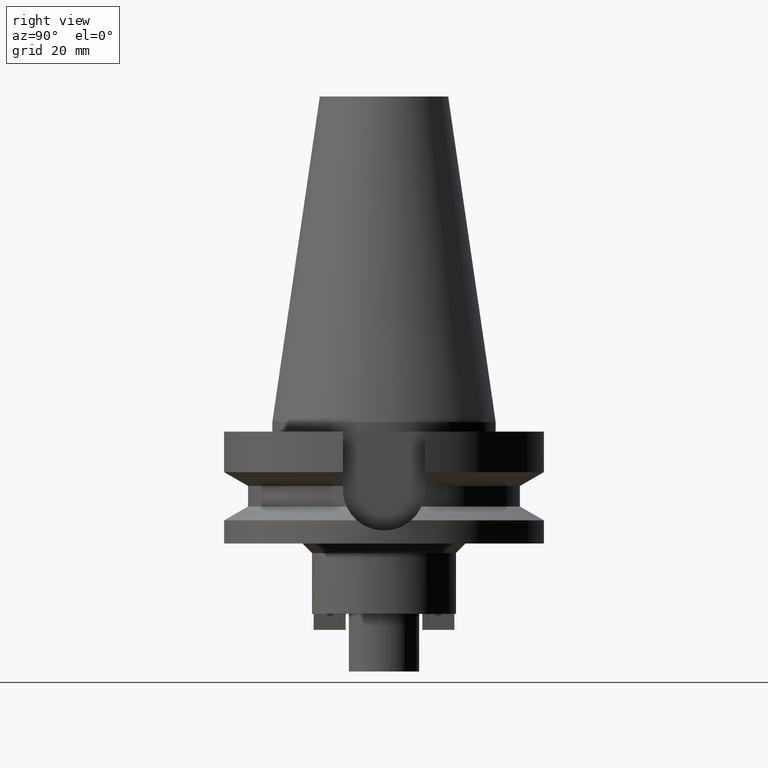
[diagram: clean part render]
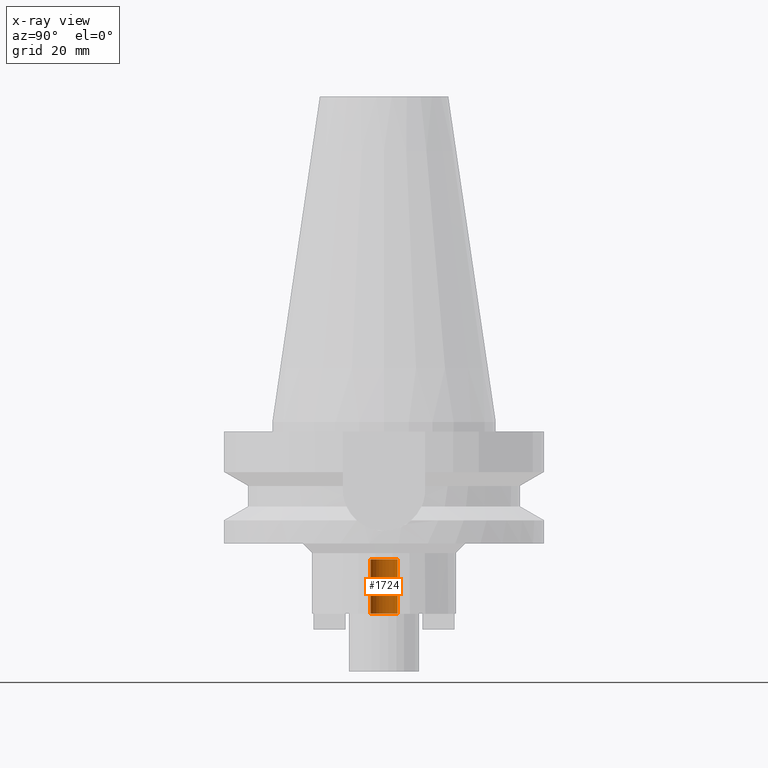
[diagram: x-ray — body ghosted, one internal face saturated and labeled with its STEP entity id]
A machine part, right view, then the same camera in x-ray: the body is ghosted and one INTERNAL B-rep face — a face not visible from any outside direction — is saturated and labeled: STEP entity #1724.
In plain terms, the highlighted cylindrical surface (edge-blend (fillet) strip) has radius 4.25 mm, axis along (0, 0, -1).
Its self-contained STEP definition (entity closure, byte-faithful):
#162=CARTESIAN_POINT('',(0.E0,2.581432987923E-14,-4.3E1));
#163=DIRECTION('',(0.E0,0.E0,1.E0));
#164=DIRECTION('',(0.E0,1.E0,0.E0));
#165=AXIS2_PLACEMENT_3D('',#162,#163,#164);
#186=DIRECTION('',(0.E0,0.E0,1.E0));
#187=VECTOR('',#186,1.7E1);
#188=CARTESIAN_POINT('',(0.E0,4.25E0,-6.E1));
#189=LINE('',#188,#187);
#201=DIRECTION('',(0.E0,0.E0,1.E0));
#202=VECTOR('',#201,1.7E1);
#203=CARTESIAN_POINT('',(0.E0,-4.25E0,-6.E1));
#204=LINE('',#203,#202);
#215=CARTESIAN_POINT('',(0.E0,2.581432987923E-14,-6.E1));
#216=DIRECTION('',(0.E0,0.E0,-1.E0));
#217=DIRECTION('',(0.E0,-1.E0,0.E0));
#218=AXIS2_PLACEMENT_3D('',#215,#216,#217);
#1354=CARTESIAN_POINT('',(0.E0,-4.25E0,-4.3E1));
#1355=CARTESIAN_POINT('',(0.E0,4.25E0,-4.3E1));
#1356=VERTEX_POINT('',#1354);
#1357=VERTEX_POINT('',#1355);
#1358=CARTESIAN_POINT('',(0.E0,4.25E0,-6.E1));
#1359=VERTEX_POINT('',#1358);
#1360=CARTESIAN_POINT('',(0.E0,-4.25E0,-6.E1));
#1361=VERTEX_POINT('',#1360);
#1712=CARTESIAN_POINT('',(0.E0,2.581432987923E-14,1.1079E2));
#1713=DIRECTION('',(0.E0,0.E0,-1.E0));
#1714=DIRECTION('',(0.E0,-1.E0,0.E0));
#1715=AXIS2_PLACEMENT_3D('',#1712,#1713,#1714);
#1716=CYLINDRICAL_SURFACE('',#1715,4.25E0);
#1717=ORIENTED_EDGE('',*,*,#1702,.F.);
#1719=ORIENTED_EDGE('',*,*,#1718,.F.);
#1720=ORIENTED_EDGE('',*,*,#1705,.T.);
#1721=ORIENTED_EDGE('',*,*,#1688,.F.);
#1722=EDGE_LOOP('',(#1717,#1719,#1720,#1721));
#1723=FACE_OUTER_BOUND('',#1722,.F.);
#166=CIRCLE('',#165,4.25E0);
#219=CIRCLE('',#218,4.25E0);
#1688=EDGE_CURVE('',#1357,#1356,#166,.T.);
#1702=EDGE_CURVE('',#1359,#1357,#189,.T.);
#1705=EDGE_CURVE('',#1361,#1356,#204,.T.);
#1718=EDGE_CURVE('',#1361,#1359,#219,.T.);
#1724=ADVANCED_FACE('',(#1723),#1716,.F.);